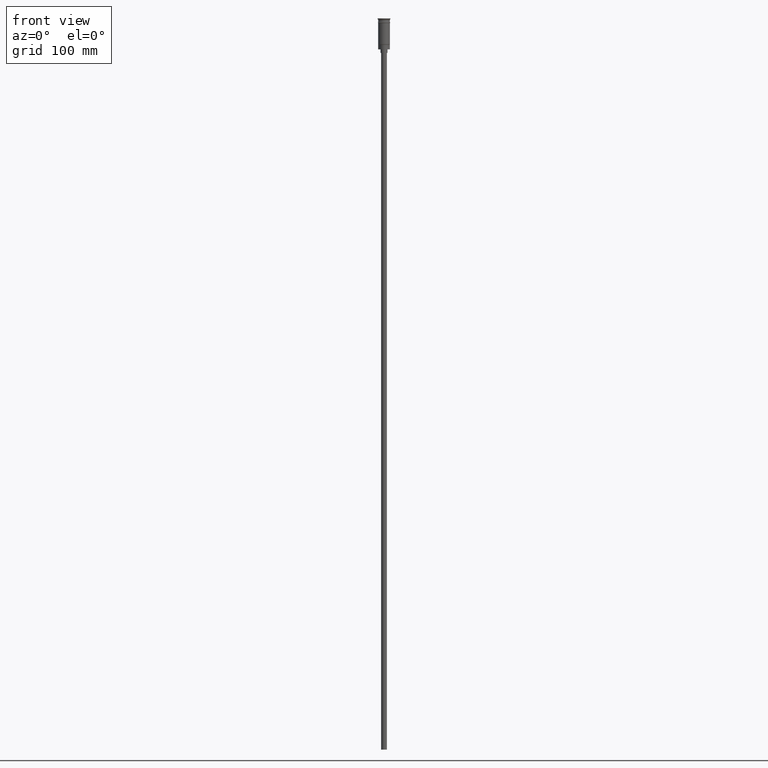
[diagram: clean part render]
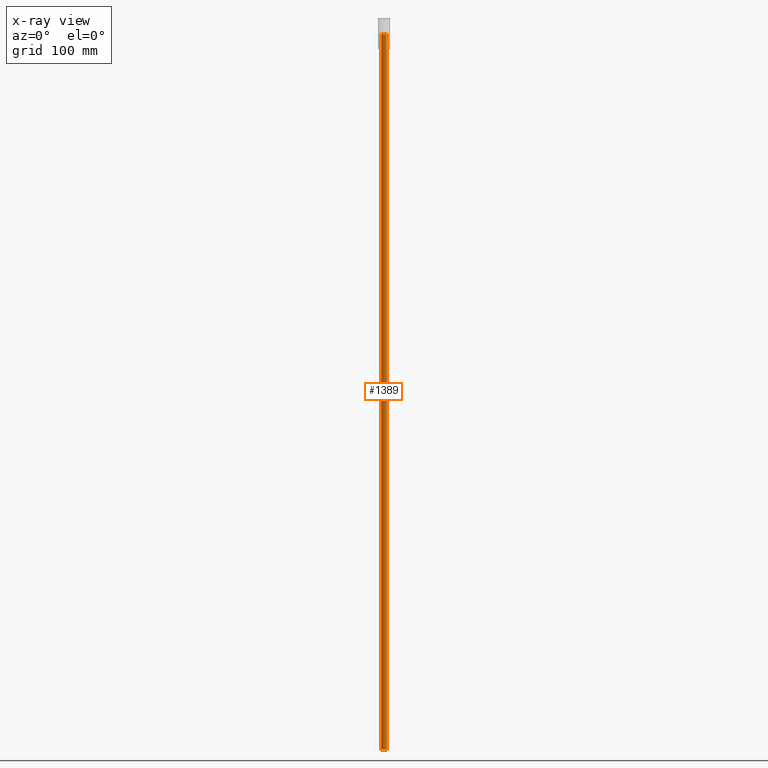
[diagram: x-ray — body ghosted, one internal face saturated and labeled with its STEP entity id]
A machine part, front view, then the same camera in x-ray: the body is ghosted and one INTERNAL B-rep face — a face not visible from any outside direction — is saturated and labeled: STEP entity #1389.
In plain terms, the highlighted cylindrical surface (edge-blend (fillet) strip) has radius 2.25 mm, axis along (-0, -0, -1).
Its self-contained STEP definition (entity closure, byte-faithful):
#7 = EDGE_LOOP ( 'NONE', ( #1476, #782, #1327, #859 ) ) ;
#20 = AXIS2_PLACEMENT_3D ( 'NONE', #939, #428, #191 ) ;
#61 = DIRECTION ( 'NONE',  ( -1.000000000000000000, 0.000000000000000000, 0.000000000000000000 ) ) ;
#180 = AXIS2_PLACEMENT_3D ( 'NONE', #909, #663, #61 ) ;
#191 = DIRECTION ( 'NONE',  ( 0.000000000000000000, -1.000000000000000000, 7.709882115452474222E-16 ) ) ;
#355 = VERTEX_POINT ( 'NONE', #1569 ) ;
#411 = FACE_OUTER_BOUND ( 'NONE', #7, .T. ) ;
#428 = DIRECTION ( 'NONE',  ( -0.000000000000000000, -3.942553354492746489E-16, -1.000000000000000000 ) ) ;
#513 = VERTEX_POINT ( 'NONE', #638 ) ;
#620 = EDGE_CURVE ( 'NONE', #513, #1398, #1528, .T. ) ;
#638 = CARTESIAN_POINT ( 'NONE',  ( 2.250000000000000444, 2.755455298081544778E-16, -13.49999999999999822 ) ) ;
#649 = EDGE_CURVE ( 'NONE', #355, #722, #1042, .T. ) ;
#663 = DIRECTION ( 'NONE',  ( -0.000000000000000000, -0.000000000000000000, -1.000000000000000000 ) ) ;
#666 = DIRECTION ( 'NONE',  ( -0.000000000000000000, -0.000000000000000000, -1.000000000000000000 ) ) ;
#681 = CARTESIAN_POINT ( 'NONE',  ( 2.250000000000000444, 2.755455298081544778E-16, -7.136038969321023551 ) ) ;
#722 = VERTEX_POINT ( 'NONE', #1447 ) ;
#782 = ORIENTED_EDGE ( 'NONE', *, *, #620, .T. ) ;
#812 = DIRECTION ( 'NONE',  ( -1.000000000000000000, 0.000000000000000000, 0.000000000000000000 ) ) ;
#859 = ORIENTED_EDGE ( 'NONE', *, *, #649, .F. ) ;
#909 = CARTESIAN_POINT ( 'NONE',  ( 0.000000000000000000, 0.000000000000000000, -7.136038969321023551 ) ) ;
#912 = DIRECTION ( 'NONE',  ( -0.000000000000000000, -0.000000000000000000, -1.000000000000000000 ) ) ;
#939 = CARTESIAN_POINT ( 'NONE',  ( 0.000000000000000000, 0.000000000000000000, -13.49999999999999822 ) ) ;
#961 = EDGE_CURVE ( 'NONE', #1398, #722, #996, .T. ) ;
#996 = CIRCLE ( 'NONE', #1206, 2.250000000000000444 ) ;
#1000 = EDGE_CURVE ( 'NONE', #513, #355, #1419, .T. ) ;
#1042 = LINE ( 'NONE', #1537, #1182 ) ;
#1069 = CARTESIAN_POINT ( 'NONE',  ( 0.000000000000000000, 0.000000000000000000, -626.5000000000000000 ) ) ;
#1182 = VECTOR ( 'NONE', #912, 1000.000000000000000 ) ;
#1206 = AXIS2_PLACEMENT_3D ( 'NONE', #1069, #1421, #812 ) ;
#1297 = CYLINDRICAL_SURFACE ( 'NONE', #180, 2.250000000000000444 ) ;
#1314 = VECTOR ( 'NONE', #666, 1000.000000000000000 ) ;
#1327 = ORIENTED_EDGE ( 'NONE', *, *, #961, .T. ) ;
#1389 = ADVANCED_FACE ( 'NONE', ( #411 ), #1297, .F. ) ;
#1398 = VERTEX_POINT ( 'NONE', #1563 ) ;
#1419 = CIRCLE ( 'NONE', #20, 2.250000000000000444 ) ;
#1421 = DIRECTION ( 'NONE',  ( 0.000000000000000000, 0.000000000000000000, -1.000000000000000000 ) ) ;
#1447 = CARTESIAN_POINT ( 'NONE',  ( -2.250000000000000444, 0.000000000000000000, -626.5000000000000000 ) ) ;
#1476 = ORIENTED_EDGE ( 'NONE', *, *, #1000, .F. ) ;
#1528 = LINE ( 'NONE', #681, #1314 ) ;
#1537 = CARTESIAN_POINT ( 'NONE',  ( -2.250000000000000444, 0.000000000000000000, -7.136038969321023551 ) ) ;
#1563 = CARTESIAN_POINT ( 'NONE',  ( 2.250000000000000444, 2.755455298081544778E-16, -626.5000000000000000 ) ) ;
#1569 = CARTESIAN_POINT ( 'NONE',  ( -2.250000000000000444, 0.000000000000000000, -13.49999999999999822 ) ) ;